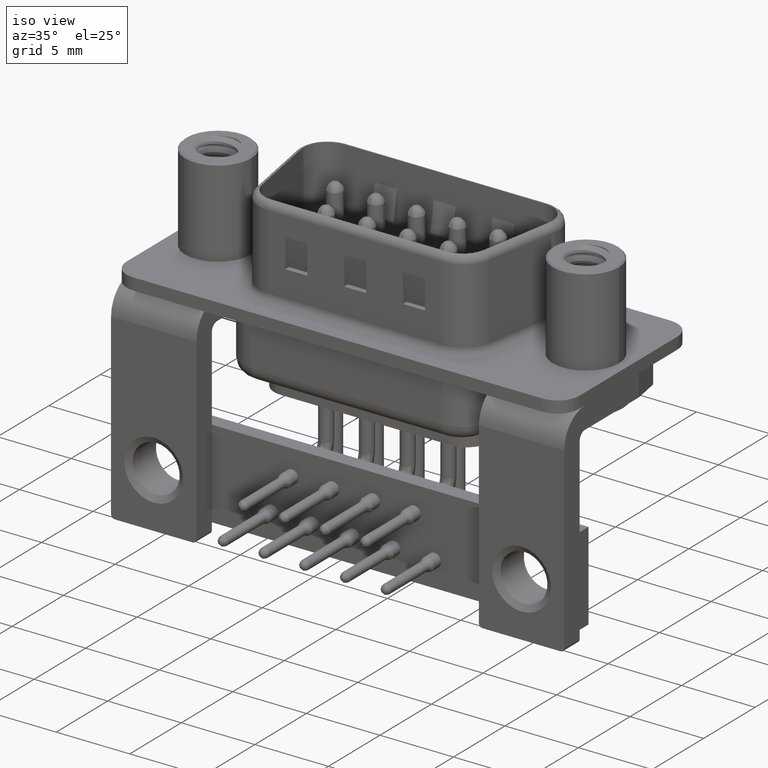
[diagram: clean part render]
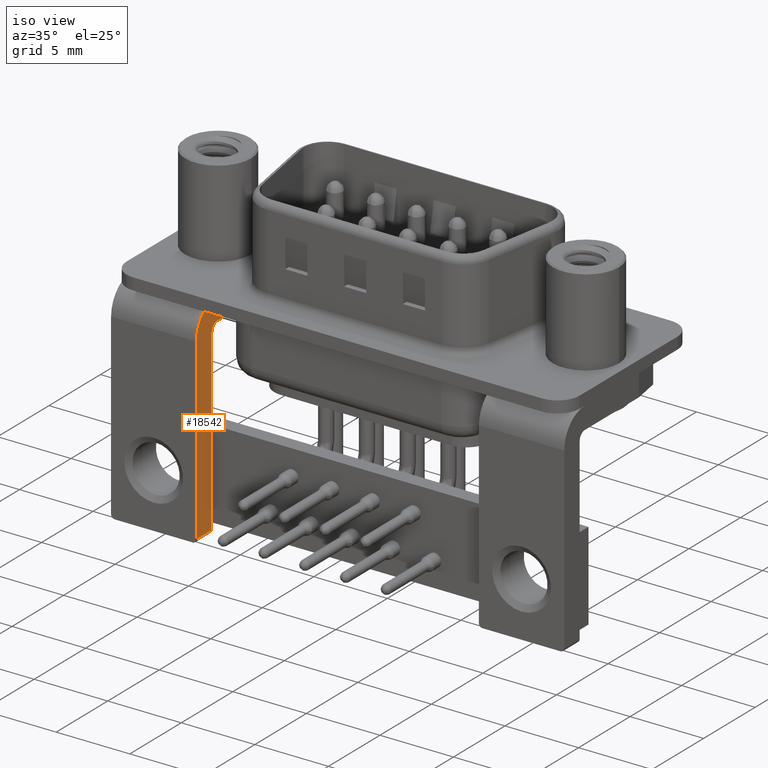
[diagram: same view with one face highlighted and labeled with its STEP entity id]
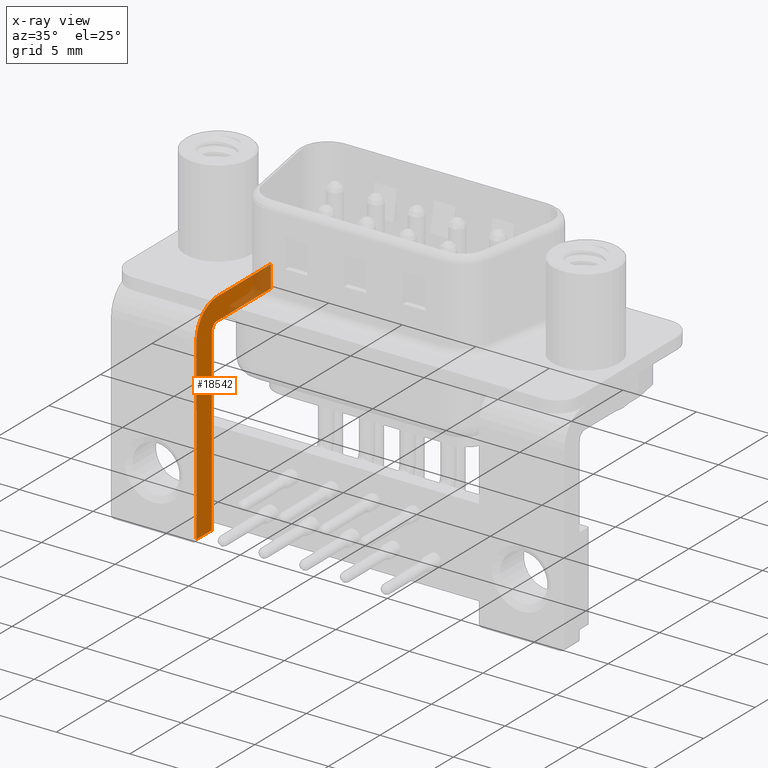
[diagram: x-ray of the same camera — body ghosted, the highlighted face saturated]
A machine part, iso view. The second image highlights one B-rep face of the part: STEP entity #18542.
The next image is the same camera in x-ray: the body ghosted, the highlighted face saturated — about 13% of this face is hidden behind the body in this view.
In plain terms, the highlighted planar face has unit normal (1, 0, 0).
Its self-contained STEP definition (entity closure, byte-faithful):
#71 = LINE ( 'NONE', #17534, #13281 ) ;
#496 = DIRECTION ( 'NONE',  ( 1.000000000000000000, 0.0000000000000000000, 0.0000000000000000000 ) ) ;
#514 = CARTESIAN_POINT ( 'NONE',  ( 2.899999999999999900, -6.250000000000000000, -2.400000000000000800 ) ) ;
#1493 = LINE ( 'NONE', #514, #11205 ) ;
#1735 = DIRECTION ( 'NONE',  ( -1.000000000000000000, -0.0000000000000000000, 0.0000000000000000000 ) ) ;
#1883 = CARTESIAN_POINT ( 'NONE',  ( 2.899999999999999900, -4.249999999999999100, -1.900000000000000800 ) ) ;
#2139 = EDGE_CURVE ( 'NONE', #20594, #2999, #18637, .T. ) ;
#2834 = CARTESIAN_POINT ( 'NONE',  ( 2.899999999999999900, -4.749999999999999100, -14.55000000000000100 ) ) ;
#2999 = VERTEX_POINT ( 'NONE', #21906 ) ;
#3215 = EDGE_CURVE ( 'NONE', #17420, #15207, #19139, .T. ) ;
#3267 = EDGE_CURVE ( 'NONE', #14254, #17420, #18059, .T. ) ;
#3752 = ORIENTED_EDGE ( 'NONE', *, *, #10666, .T. ) ;
#3809 = EDGE_CURVE ( 'NONE', #9876, #20594, #4269, .T. ) ;
#4181 = AXIS2_PLACEMENT_3D ( 'NONE', #12049, #1735, #13778 ) ;
#4269 = LINE ( 'NONE', #10539, #22159 ) ;
#4294 = VECTOR ( 'NONE', #10834, 1000.000000000000000 ) ;
#5172 = DIRECTION ( 'NONE',  ( 0.0000000000000000000, -6.994852725712932700E-017, 1.000000000000000000 ) ) ;
#5273 = CARTESIAN_POINT ( 'NONE',  ( 2.899999999999999900, -4.749999999999999100, -14.80000000000000100 ) ) ;
#5571 = AXIS2_PLACEMENT_3D ( 'NONE', #18631, #10037, #22177 ) ;
#6038 = VERTEX_POINT ( 'NONE', #16099 ) ;
#6669 = CARTESIAN_POINT ( 'NONE',  ( 2.899999999999999900, 0.9781278341184849200, -1.900000000000000600 ) ) ;
#8287 = PLANE ( 'NONE',  #5571 ) ;
#9459 = VECTOR ( 'NONE', #5172, 1000.000000000000000 ) ;
#9524 = ORIENTED_EDGE ( 'NONE', *, *, #10909, .T. ) ;
#9580 = DIRECTION ( 'NONE',  ( 0.0000000000000000000, 1.000000000000000000, -0.0000000000000000000 ) ) ;
#9865 = CIRCLE ( 'NONE', #4181, 0.5000000000000004400 ) ;
#9876 = VERTEX_POINT ( 'NONE', #21345 ) ;
#10037 = DIRECTION ( 'NONE',  ( 1.000000000000000000, 0.0000000000000000000, 0.0000000000000000000 ) ) ;
#10539 = CARTESIAN_POINT ( 'NONE',  ( 2.899999999999999900, -4.749999999999999100, -14.55000000000000100 ) ) ;
#10666 = EDGE_CURVE ( 'NONE', #2999, #14254, #9865, .T. ) ;
#10797 = CARTESIAN_POINT ( 'NONE',  ( 2.899999999999999900, -4.250000000000000000, -2.400000000000000800 ) ) ;
#10834 = DIRECTION ( 'NONE',  ( 0.0000000000000000000, 1.000000000000000000, 2.990902544787598700E-017 ) ) ;
#10909 = EDGE_CURVE ( 'NONE', #19036, #9876, #1493, .T. ) ;
#11153 = ORIENTED_EDGE ( 'NONE', *, *, #3267, .T. ) ;
#11205 = VECTOR ( 'NONE', #17761, 1000.000000000000000 ) ;
#11457 = CARTESIAN_POINT ( 'NONE',  ( 2.899999999999999900, 0.9781278341184849200, -0.3999999999999999700 ) ) ;
#12049 = CARTESIAN_POINT ( 'NONE',  ( 2.899999999999999900, -4.249999999999999100, -2.400000000000001200 ) ) ;
#12405 = DIRECTION ( 'NONE',  ( 0.0000000000000000000, -1.000000000000000000, -1.196361017915039200E-016 ) ) ;
#12546 = DIRECTION ( 'NONE',  ( 0.0000000000000000000, 0.0000000000000000000, -1.000000000000000000 ) ) ;
#13119 = ORIENTED_EDGE ( 'NONE', *, *, #18143, .T. ) ;
#13281 = VECTOR ( 'NONE', #12405, 1000.000000000000000 ) ;
#13636 = EDGE_LOOP ( 'NONE', ( #11153, #17583, #14921, #13119, #9524, #18134, #21319, #3752 ) ) ;
#13778 = DIRECTION ( 'NONE',  ( 0.0000000000000000000, 0.0000000000000000000, 1.000000000000000000 ) ) ;
#14254 = VERTEX_POINT ( 'NONE', #16370 ) ;
#14572 = VECTOR ( 'NONE', #18734, 1000.000000000000000 ) ;
#14921 = ORIENTED_EDGE ( 'NONE', *, *, #20321, .T. ) ;
#15207 = VERTEX_POINT ( 'NONE', #11457 ) ;
#16099 = CARTESIAN_POINT ( 'NONE',  ( 2.899999999999999900, -4.250000000000000000, -0.4000000000000006300 ) ) ;
#16370 = CARTESIAN_POINT ( 'NONE',  ( 2.899999999999999900, -4.249999999999999100, -1.900000000000000600 ) ) ;
#17420 = VERTEX_POINT ( 'NONE', #6669 ) ;
#17534 = CARTESIAN_POINT ( 'NONE',  ( 2.899999999999999900, 3.000000000000000400, -0.3999999999999997400 ) ) ;
#17583 = ORIENTED_EDGE ( 'NONE', *, *, #3215, .T. ) ;
#17761 = DIRECTION ( 'NONE',  ( 0.0000000000000000000, 0.0000000000000000000, -1.000000000000000000 ) ) ;
#18059 = LINE ( 'NONE', #1883, #4294 ) ;
#18134 = ORIENTED_EDGE ( 'NONE', *, *, #3809, .T. ) ;
#18143 = EDGE_CURVE ( 'NONE', #6038, #19036, #18168, .T. ) ;
#18168 = CIRCLE ( 'NONE', #19129, 2.000000000000000400 ) ;
#18542 = ADVANCED_FACE ( 'NONE', ( #20902 ), #8287, .T. ) ;
#18631 = CARTESIAN_POINT ( 'NONE',  ( 2.899999999999999900, -4.250000000000000000, -2.400000000000000800 ) ) ;
#18637 = LINE ( 'NONE', #5273, #9459 ) ;
#18698 = CARTESIAN_POINT ( 'NONE',  ( 2.899999999999999900, 0.9781278341184849200, -2.400000000000000800 ) ) ;
#18734 = DIRECTION ( 'NONE',  ( 0.0000000000000000000, 0.0000000000000000000, 1.000000000000000000 ) ) ;
#19036 = VERTEX_POINT ( 'NONE', #20152 ) ;
#19129 = AXIS2_PLACEMENT_3D ( 'NONE', #10797, #496, #12546 ) ;
#19139 = LINE ( 'NONE', #18698, #14572 ) ;
#20152 = CARTESIAN_POINT ( 'NONE',  ( 2.899999999999999900, -6.250000000000000000, -2.400000000000000400 ) ) ;
#20321 = EDGE_CURVE ( 'NONE', #15207, #6038, #71, .T. ) ;
#20594 = VERTEX_POINT ( 'NONE', #2834 ) ;
#20902 = FACE_OUTER_BOUND ( 'NONE', #13636, .T. ) ;
#21319 = ORIENTED_EDGE ( 'NONE', *, *, #2139, .T. ) ;
#21345 = CARTESIAN_POINT ( 'NONE',  ( 2.899999999999999900, -6.250000000000000000, -14.54999999999999700 ) ) ;
#21906 = CARTESIAN_POINT ( 'NONE',  ( 2.899999999999999900, -4.750000000000000000, -2.400000000000001200 ) ) ;
#22159 = VECTOR ( 'NONE', #9580, 1000.000000000000000 ) ;
#22177 = DIRECTION ( 'NONE',  ( 0.0000000000000000000, 0.0000000000000000000, -1.000000000000000000 ) ) ;